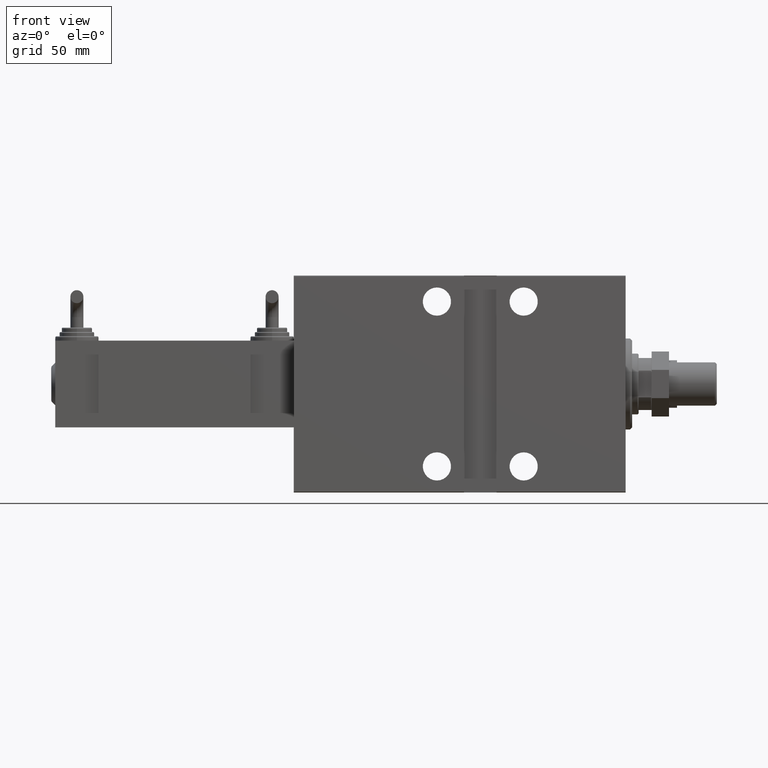
[diagram: clean part render]
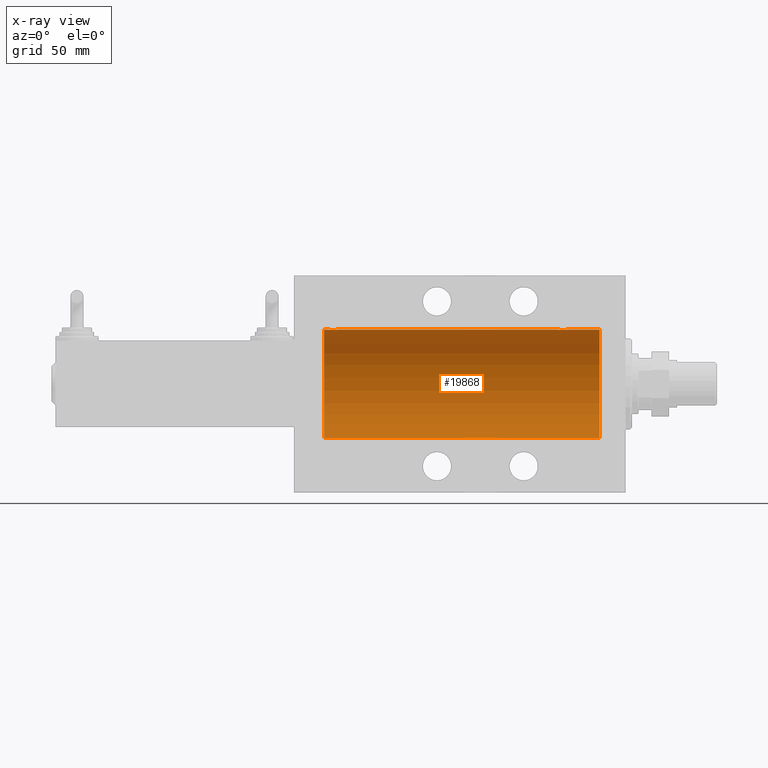
[diagram: x-ray — body ghosted, one internal face saturated and labeled with its STEP entity id]
A machine part, front view, then the same camera in x-ray: the body is ghosted and one INTERNAL B-rep face — a face not visible from any outside direction — is saturated and labeled: STEP entity #19868.
In plain terms, the highlighted cylindrical surface (partial cylindrical patch) has radius 25 mm, axis along (1, 0, -0).
Its self-contained STEP definition (entity closure, byte-faithful):
#207 = CARTESIAN_POINT ( 'NONE',  ( 132.4999999999999716, -0.1631750940176176501, 25.00000000000000711 ) ) ;
#1170 = CARTESIAN_POINT ( 'NONE',  ( 26.50000000000000711, -0.1631750940176204812, 25.00000000000000711 ) ) ;
#1415 = CARTESIAN_POINT ( 'NONE',  ( 31.16827641493956591, -1.255214705003181441, 24.96884293994578030 ) ) ;
#1666 = CARTESIAN_POINT ( 'NONE',  ( 26.57985090779070703, -0.6480119923854216202, 24.99212088949391131 ) ) ;
#2170 = CARTESIAN_POINT ( 'NONE',  ( 31.24606379094066710, -1.109818057797416824, 24.97580694515542632 ) ) ;
#2769 = DIRECTION ( 'NONE',  ( -1.000000000000000000, -0.000000000000000000, -0.000000000000000000 ) ) ;
#3310 = LINE ( 'NONE', #10685, #33901 ) ;
#3411 = VERTEX_POINT ( 'NONE', #14076 ) ;
#4000 = CARTESIAN_POINT ( 'NONE',  ( 135.6456066614863403, -2.420689345803753501, 24.88254961038873603 ) ) ;
#4012 = LINE ( 'NONE', #19479, #24532 ) ;
#4360 = VECTOR ( 'NONE', #46422, 1000.000000000000000 ) ;
#4601 = VERTEX_POINT ( 'NONE', #19554 ) ;
#5272 = ORIENTED_EDGE ( 'NONE', *, *, #6382, .T. ) ;
#5844 = EDGE_CURVE ( 'NONE', #36050, #44778, #4012, .T. ) ;
#5983 = CARTESIAN_POINT ( 'NONE',  ( 29.80435660916301543, -2.372734907014168115, 24.88722742718433878 ) ) ;
#6382 = EDGE_CURVE ( 'NONE', #49543, #47107, #10271, .T. ) ;
#7556 = CARTESIAN_POINT ( 'NONE',  ( 139.0000000000000000, 0.000000000000000000, 25.00000000000000000 ) ) ;
#7565 = CARTESIAN_POINT ( 'NONE',  ( 132.7523974898045083, -1.106703319666884733, 24.97594585958023217 ) ) ;
#7812 = CARTESIAN_POINT ( 'NONE',  ( 132.8298870971908059, -1.252049606094330914, 24.96900299967627745 ) ) ;
#8212 = CARTESIAN_POINT ( 'NONE',  ( 139.0000000000000000, 0.000000000000000000, 25.00000000000000000 ) ) ;
#9027 = CARTESIAN_POINT ( 'NONE',  ( 30.52256774340189338, -1.989585286700240596, 24.92087098724766747 ) ) ;
#9066 = CARTESIAN_POINT ( 'NONE',  ( 136.5225677434019076, -1.989585286700244149, 24.92087098724766037 ) ) ;
#9282 = CARTESIAN_POINT ( 'NONE',  ( 30.25084023924055288, -2.170728182476714174, 24.90574631553725027 ) ) ;
#9793 = CARTESIAN_POINT ( 'NONE',  ( 30.88185954148645251, -1.653834020452935816, 24.94550385189585029 ) ) ;
#10181 = ORIENTED_EDGE ( 'NONE', *, *, #18274, .T. ) ;
#10271 = B_SPLINE_CURVE_WITH_KNOTS ( 'NONE', 3,
 ( #21195, #1170, #32076, #1666, #47491, #35863, #20935, #28268, #40655, #36622, #44443, #17388, #47735, #17637, #39904, #40156, #20434, #32822, #36120, #43944, #5983, #12836, #9282, #9027, #48489, #9793, #21447, #1415, #2170, #16636, #13840, #43445 ),
 .UNSPECIFIED., .F., .F.,
 ( 4, 2, 2, 2, 2, 2, 2, 2, 2, 2, 2, 2, 2, 2, 2, 4 ),
 ( 0.007821024441662268595, 0.008309723826317871528, 0.008798423210973474462, 0.009287122595629077396, 0.009775821980284680329, 0.01026452136494028326, 0.01075322074959588620, 0.01124192013425148913, 0.01173061951890709206, 0.01221931890356269326, 0.01270801828821829793, 0.01319671767287389913, 0.01368541705752950380, 0.01417411644218510500, 0.01466281582684070967, 0.01564021459615191553 ),
 .UNSPECIFIED. ) ;
#10401 = CARTESIAN_POINT ( 'NONE',  ( 139.0000000000000000, 3.061616997868383043E-15, -25.00000000000000000 ) ) ;
#10685 = CARTESIAN_POINT ( 'NONE',  ( 139.0000000000000000, 0.000000000000000000, 25.00000000000000000 ) ) ;
#11077 = ORIENTED_EDGE ( 'NONE', *, *, #36370, .F. ) ;
#11367 = CARTESIAN_POINT ( 'NONE',  ( 135.3259657003945904, -2.484007091859755434, 24.87630842367763151 ) ) ;
#11689 = EDGE_CURVE ( 'NONE', #36050, #3411, #47380, .T. ) ;
#11913 = EDGE_CURVE ( 'NONE', #4601, #47107, #19204, .T. ) ;
#12126 = CARTESIAN_POINT ( 'NONE',  ( 133.0125018416560465, -1.525407911884357093, 24.95379469572362297 ) ) ;
#12380 = CARTESIAN_POINT ( 'NONE',  ( 133.8896320349114148, -2.245863995402891611, 24.89899750494197761 ) ) ;
#12596 = EDGE_LOOP ( 'NONE', ( #15959, #30323, #36423, #29023, #5272, #19101, #10181, #11077 ) ) ;
#12628 = CARTESIAN_POINT ( 'NONE',  ( 137.1682764149395268, -1.255214705003177889, 24.96884293994577320 ) ) ;
#12765 = DIRECTION ( 'NONE',  ( -1.000000000000000000, -0.000000000000000000, -0.000000000000000000 ) ) ;
#12836 = CARTESIAN_POINT ( 'NONE',  ( 30.10723845838409929, -2.247417070759890834, 24.89885693081946272 ) ) ;
#12873 = CARTESIAN_POINT ( 'NONE',  ( 137.4334935523974934, -0.6588655613945783029, 24.99312727339971119 ) ) ;
#13450 = AXIS2_PLACEMENT_3D ( 'NONE', #23080, #19257, #14482 ) ;
#13840 = CARTESIAN_POINT ( 'NONE',  ( 31.49999999999996447, -0.3305063766663697833, 24.99999999999999645 ) ) ;
#14076 = CARTESIAN_POINT ( 'NONE',  ( 139.0000000000000000, 0.000000000000000000, 25.00000000000000000 ) ) ;
#14482 = DIRECTION ( 'NONE',  ( 0.000000000000000000, 0.000000000000000000, 1.000000000000000000 ) ) ;
#14736 = DIRECTION ( 'NONE',  ( -1.000000000000000000, -0.000000000000000000, -0.000000000000000000 ) ) ;
#15174 = CARTESIAN_POINT ( 'NONE',  ( 134.1921165759419239, -2.371528299825738539, 24.88734287464371064 ) ) ;
#15675 = CARTESIAN_POINT ( 'NONE',  ( 135.1632358963854585, -2.500125740978183853, 24.87467329022545570 ) ) ;
#15959 = ORIENTED_EDGE ( 'NONE', *, *, #11689, .F. ) ;
#16566 = CYLINDRICAL_SURFACE ( 'NONE', #31429, 25.00000000000000000 ) ;
#16636 = CARTESIAN_POINT ( 'NONE',  ( 31.43349355239747567, -0.6588655613945901823, 24.99312727339969697 ) ) ;
#16921 = CARTESIAN_POINT ( 'NONE',  ( 136.6512113355911140, -1.884161199660612240, 24.92916496727982079 ) ) ;
#17064 = FACE_OUTER_BOUND ( 'NONE', #12596, .T. ) ;
#17182 = CARTESIAN_POINT ( 'NONE',  ( 137.5000000000000284, -0.3305063766663746128, 25.00000000000000711 ) ) ;
#17264 = VERTEX_POINT ( 'NONE', #40429 ) ;
#17388 = CARTESIAN_POINT ( 'NONE',  ( 27.74616804575498108, -2.169003991399864439, 24.90589728951138682 ) ) ;
#17430 = CARTESIAN_POINT ( 'NONE',  ( 136.9853803371709375, -1.528152964861306584, 24.95362559291379156 ) ) ;
#17630 = VERTEX_POINT ( 'NONE', #23212 ) ;
#17637 = CARTESIAN_POINT ( 'NONE',  ( 28.19211657594194520, -2.371528299825740760, 24.88734287464371420 ) ) ;
#18216 = DIRECTION ( 'NONE',  ( 0.000000000000000000, 0.000000000000000000, 1.000000000000000000 ) ) ;
#18274 = EDGE_CURVE ( 'NONE', #4601, #17630, #49388, .T. ) ;
#19101 = ORIENTED_EDGE ( 'NONE', *, *, #11913, .F. ) ;
#19204 = LINE ( 'NONE', #7556, #29640 ) ;
#19212 = CARTESIAN_POINT ( 'NONE',  ( 134.6705231988572962, -2.483544361357258978, 24.87635491893502149 ) ) ;
#19257 = DIRECTION ( 'NONE',  ( -1.000000000000000000, 0.000000000000000000, 0.000000000000000000 ) ) ;
#19467 = CARTESIAN_POINT ( 'NONE',  ( 135.8043566091629941, -2.372734907014162786, 24.88722742718433167 ) ) ;
#19479 = CARTESIAN_POINT ( 'NONE',  ( 139.0000000000000000, 3.061616997868383043E-15, -25.00000000000000000 ) ) ;
#19554 = CARTESIAN_POINT ( 'NONE',  ( 132.5000000000000000, -1.941505016884693205E-23, 25.00000000000000000 ) ) ;
#19719 = CARTESIAN_POINT ( 'NONE',  ( 132.5158215994234752, -0.3254210271412192879, 24.99840249400844527 ) ) ;
#19868 = ADVANCED_FACE ( 'NONE', ( #17064 ), #16566, .F. ) ;
#20434 = CARTESIAN_POINT ( 'NONE',  ( 28.83293504821939024, -2.499872792855073467, 24.87469871246082675 ) ) ;
#20616 = DIRECTION ( 'NONE',  ( 0.000000000000000000, 0.000000000000000000, 1.000000000000000000 ) ) ;
#20862 = CARTESIAN_POINT ( 'NONE',  ( 139.0000000000000000, 0.000000000000000000, 0.000000000000000000 ) ) ;
#20935 = CARTESIAN_POINT ( 'NONE',  ( 26.82988709719076681, -1.252049606094334910, 24.96900299967627390 ) ) ;
#21195 = CARTESIAN_POINT ( 'NONE',  ( 26.50000000000000355, -1.940518940753166940E-23, 25.00000000000000000 ) ) ;
#21447 = CARTESIAN_POINT ( 'NONE',  ( 30.98538033717094464, -1.528152964861309915, 24.95362559291378801 ) ) ;
#23080 = CARTESIAN_POINT ( 'NONE',  ( 139.0000000000000000, 0.000000000000000000, 0.000000000000000000 ) ) ;
#23212 = CARTESIAN_POINT ( 'NONE',  ( 137.5000000000000000, 9.792438154224103788E-16, 25.00000000000000000 ) ) ;
#23274 = CARTESIAN_POINT ( 'NONE',  ( 133.4746381775692043, -1.987446652080248732, 24.92104239223420592 ) ) ;
#24258 = CARTESIAN_POINT ( 'NONE',  ( 137.5000000000000000, 9.792438154224103788E-16, 25.00000000000000000 ) ) ;
#24532 = VECTOR ( 'NONE', #27568, 1000.000000000000000 ) ;
#27568 = DIRECTION ( 'NONE',  ( -1.000000000000000000, -0.000000000000000000, -0.000000000000000000 ) ) ;
#27673 = CARTESIAN_POINT ( 'NONE',  ( 26.50000000000000355, -1.940518940753166940E-23, 25.00000000000000000 ) ) ;
#28268 = CARTESIAN_POINT ( 'NONE',  ( 27.01250184165601809, -1.525407911884361756, 24.95379469572361586 ) ) ;
#28823 = CARTESIAN_POINT ( 'NONE',  ( 136.8818595414864205, -1.653834020452934483, 24.94550385189584318 ) ) ;
#29023 = ORIENTED_EDGE ( 'NONE', *, *, #48819, .F. ) ;
#29640 = VECTOR ( 'NONE', #2769, 1000.000000000000000 ) ;
#30323 = ORIENTED_EDGE ( 'NONE', *, *, #5844, .T. ) ;
#31117 = CARTESIAN_POINT ( 'NONE',  ( 136.1072384583841313, -2.247417070759885060, 24.89885693081946982 ) ) ;
#31429 = AXIS2_PLACEMENT_3D ( 'NONE', #20862, #12765, #20616 ) ;
#31615 = CARTESIAN_POINT ( 'NONE',  ( 132.6278403059139919, -0.8058335233485485194, 24.98746277938383642 ) ) ;
#32076 = CARTESIAN_POINT ( 'NONE',  ( 26.51582159942343253, -0.3254210271412220079, 24.99840249400844527 ) ) ;
#32822 = CARTESIAN_POINT ( 'NONE',  ( 29.16323589638542657, -2.500125740978187849, 24.87467329022545570 ) ) ;
#33901 = VECTOR ( 'NONE', #14736, 1000.000000000000000 ) ;
#34407 = CARTESIAN_POINT ( 'NONE',  ( 133.3461666385065882, -1.881857718844712313, 24.92933960374834257 ) ) ;
#34615 = CIRCLE ( 'NONE', #37062, 25.00000000000000000 ) ;
#35149 = CARTESIAN_POINT ( 'NONE',  ( 132.5798509077906999, -0.6480119923854186226, 24.99212088949390420 ) ) ;
#35863 = CARTESIAN_POINT ( 'NONE',  ( 26.75239748980449406, -1.106703319666880514, 24.97594585958024282 ) ) ;
#36050 = VERTEX_POINT ( 'NONE', #10401 ) ;
#36120 = CARTESIAN_POINT ( 'NONE',  ( 29.32596570039460104, -2.484007091859757654, 24.87630842367763861 ) ) ;
#36370 = EDGE_CURVE ( 'NONE', #3411, #17630, #46917, .T. ) ;
#36423 = ORIENTED_EDGE ( 'NONE', *, *, #47778, .T. ) ;
#36622 = CARTESIAN_POINT ( 'NONE',  ( 27.34616663850663087, -1.881857718844711869, 24.92933960374833902 ) ) ;
#37062 = AXIS2_PLACEMENT_3D ( 'NONE', #45271, #44783, #18216 ) ;
#38699 = CARTESIAN_POINT ( 'NONE',  ( 134.3509560983090978, -2.419770561643896922, 24.88263927071751880 ) ) ;
#39904 = CARTESIAN_POINT ( 'NONE',  ( 28.35095609830903740, -2.419770561643901363, 24.88263927071751169 ) ) ;
#40156 = CARTESIAN_POINT ( 'NONE',  ( 28.67052319885732103, -2.483544361357262531, 24.87635491893501793 ) ) ;
#40429 = CARTESIAN_POINT ( 'NONE',  ( 12.00000000000001066, 0.000000000000000000, 25.00000000000000000 ) ) ;
#40442 = CARTESIAN_POINT ( 'NONE',  ( 137.2460637909406671, -1.109818057797406832, 24.97580694515542277 ) ) ;
#40655 = CARTESIAN_POINT ( 'NONE',  ( 27.11587617213528389, -1.651251241585097063, 24.94567559498348430 ) ) ;
#42400 = CARTESIAN_POINT ( 'NONE',  ( 31.50000000000000000, -6.470145921101463186E-15, 25.00000000000000000 ) ) ;
#42485 = CARTESIAN_POINT ( 'NONE',  ( 133.1158761721353017, -1.651251241585098395, 24.94567559498349141 ) ) ;
#42732 = CARTESIAN_POINT ( 'NONE',  ( 132.5000000000000000, -1.941505016884693205E-23, 25.00000000000000000 ) ) ;
#43445 = CARTESIAN_POINT ( 'NONE',  ( 31.50000000000000000, -6.470145921101463186E-15, 25.00000000000000000 ) ) ;
#43944 = CARTESIAN_POINT ( 'NONE',  ( 29.64560666148631896, -2.420689345803753501, 24.88254961038874313 ) ) ;
#44443 = CARTESIAN_POINT ( 'NONE',  ( 27.47463817756919724, -1.987446652080258724, 24.92104239223420947 ) ) ;
#44778 = VERTEX_POINT ( 'NONE', #47699 ) ;
#44783 = DIRECTION ( 'NONE',  ( -1.000000000000000000, 0.000000000000000000, 0.000000000000000000 ) ) ;
#45271 = CARTESIAN_POINT ( 'NONE',  ( 12.00000000000001066, 0.000000000000000000, 0.000000000000000000 ) ) ;
#46023 = CARTESIAN_POINT ( 'NONE',  ( 134.8329350482193831, -2.499872792855069470, 24.87469871246082675 ) ) ;
#46422 = DIRECTION ( 'NONE',  ( -1.000000000000000000, -0.000000000000000000, -0.000000000000000000 ) ) ;
#46531 = CARTESIAN_POINT ( 'NONE',  ( 136.2508402392405458, -2.170728182476716839, 24.90574631553725027 ) ) ;
#46917 = LINE ( 'NONE', #8212, #4360 ) ;
#47107 = VERTEX_POINT ( 'NONE', #42400 ) ;
#47380 = CIRCLE ( 'NONE', #13450, 25.00000000000000000 ) ;
#47491 = CARTESIAN_POINT ( 'NONE',  ( 26.62784030591393147, -0.8058335233485444116, 24.98746277938383642 ) ) ;
#47699 = CARTESIAN_POINT ( 'NONE',  ( 12.00000000000001066, 3.061616997868383043E-15, -25.00000000000000000 ) ) ;
#47735 = CARTESIAN_POINT ( 'NONE',  ( 27.88963203491136511, -2.245863995402893831, 24.89899750494197406 ) ) ;
#47778 = EDGE_CURVE ( 'NONE', #44778, #17264, #34615, .T. ) ;
#48489 = CARTESIAN_POINT ( 'NONE',  ( 30.65121133559111755, -1.884161199660612906, 24.92916496727982434 ) ) ;
#48819 = EDGE_CURVE ( 'NONE', #49543, #17264, #3310, .T. ) ;
#49388 = B_SPLINE_CURVE_WITH_KNOTS ( 'NONE', 3,
 ( #42732, #207, #19719, #35149, #31615, #7565, #7812, #12126, #42485, #34407, #23274, #49833, #12380, #15174, #38699, #19212, #46023, #15675, #11367, #4000, #19467, #31117, #46531, #9066, #16921, #28823, #17430, #12628, #40442, #12873, #17182, #24258 ),
 .UNSPECIFIED., .F., .F.,
 ( 4, 2, 2, 2, 2, 2, 2, 2, 2, 2, 2, 2, 2, 2, 2, 4 ),
 ( 0.007821024441662306759, 0.008309723826317914896, 0.008798423210973523034, 0.009287122595629131172, 0.009775821980284739310, 0.01026452136494034745, 0.01075322074959595559, 0.01124192013425156372, 0.01173061951890717186, 0.01221931890356278000, 0.01270801828821838814, 0.01319671767287399627, 0.01368541705752960441, 0.01417411644218521255, 0.01466281582684082069, 0.01564021459615200227 ),
 .UNSPECIFIED. ) ;
#49543 = VERTEX_POINT ( 'NONE', #27673 ) ;
#49833 = CARTESIAN_POINT ( 'NONE',  ( 133.7461680457550131, -2.169003991399856890, 24.90589728951138682 ) ) ;